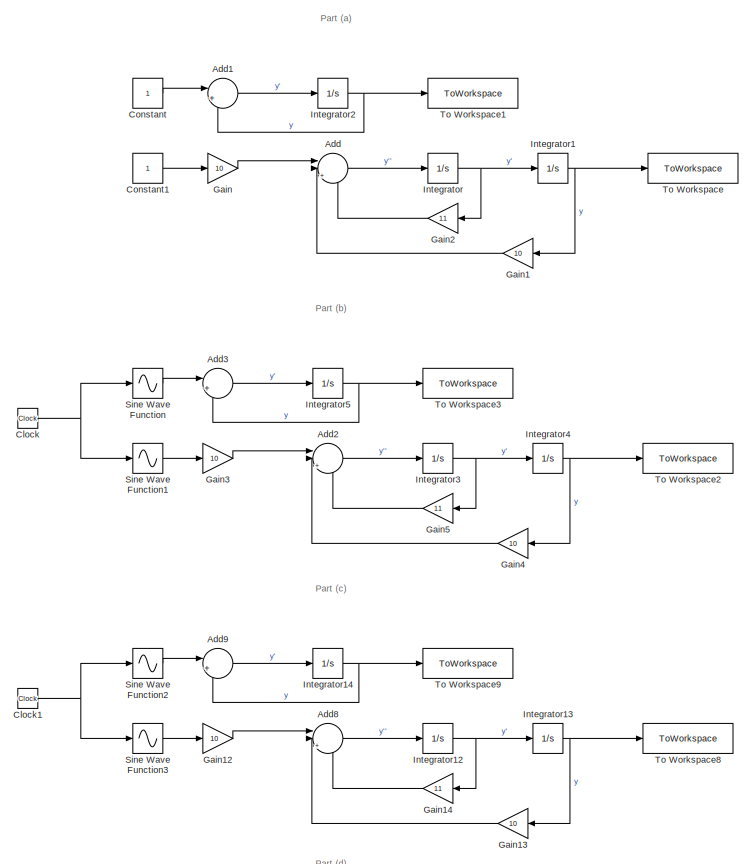
[diagram: root canvas - part 1/2, full width, top band]
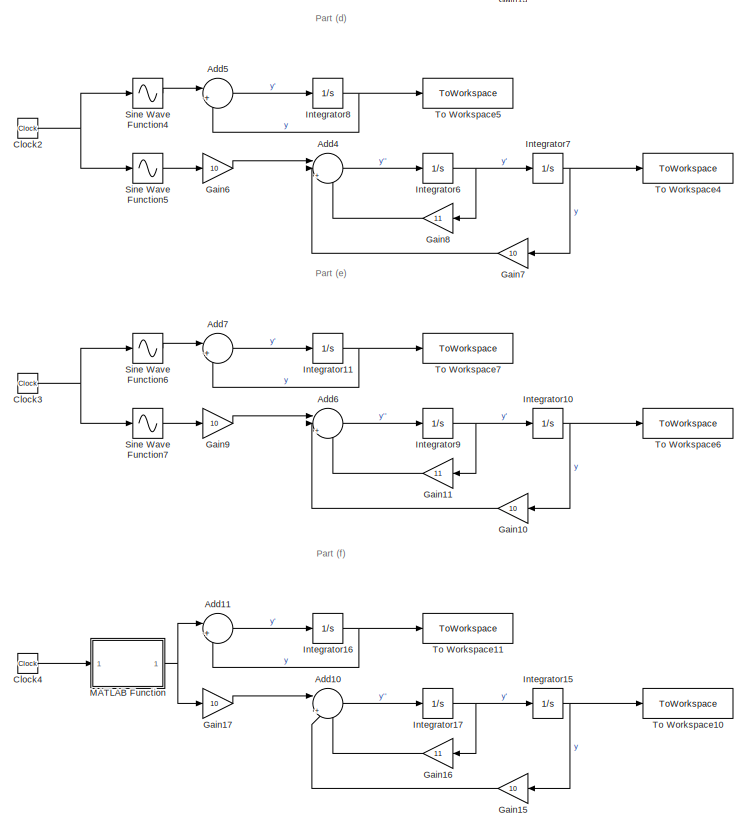
[diagram: root canvas - part 2/2, full width, bottom band]
MODEL slx_d54242b74423
KIND model
CONFIG AbsTol = auto
CONFIG EnableMultiTasking = off
CONFIG FixedStep = auto
CONFIG MaxStep = auto
CONFIG MinStep = auto
CONFIG RelTol = 1e-3
CONFIG SampleTimeConstraint = Unconstrained
CONFIG SolverName = VariableStepAuto
CONFIG StartTime = 0.0
CONFIG StopTime = time_end
BLOCK [Sum] Add
  Inputs = ||+--
  Ports = [3, 1]
BLOCK [Sum] Add1
  Inputs = |+-
  Ports = [2, 1]
BLOCK [Sum] Add10
  Inputs = ||+--
  Ports = [3, 1]
BLOCK [Sum] Add11
  Inputs = |+-
  Ports = [2, 1]
BLOCK [Sum] Add2
  Inputs = ||+--
  Ports = [3, 1]
BLOCK [Sum] Add3
  Inputs = |+-
  Ports = [2, 1]
BLOCK [Sum] Add4
  Inputs = ||+--
  Ports = [3, 1]
BLOCK [Sum] Add5
  Inputs = |+-
  Ports = [2, 1]
BLOCK [Sum] Add6
  Inputs = ||+--
  Ports = [3, 1]
BLOCK [Sum] Add7
  Inputs = |+-
  Ports = [2, 1]
BLOCK [Sum] Add8
  Inputs = ||+--
  Ports = [3, 1]
BLOCK [Sum] Add9
  Inputs = |+-
  Ports = [2, 1]
BLOCK [Clock] Clock
BLOCK [Clock] Clock1
BLOCK [Clock] Clock2
BLOCK [Clock] Clock3
BLOCK [Clock] Clock4
BLOCK [Constant] Constant
BLOCK [Constant] Constant1
BLOCK [Gain] Gain
  Gain = 10
BLOCK [Gain] Gain1
  Gain = 10
  NameLocation = top
BLOCK [Gain] Gain10
  Gain = 10
  NameLocation = top
BLOCK [Gain] Gain11
  Gain = 11
  NameLocation = top
BLOCK [Gain] Gain12
  Gain = 10
BLOCK [Gain] Gain13
  Gain = 10
  NameLocation = top
BLOCK [Gain] Gain14
  Gain = 11
  NameLocation = top
BLOCK [Gain] Gain15
  Gain = 10
  NameLocation = top
BLOCK [Gain] Gain16
  Gain = 11
  NameLocation = top
BLOCK [Gain] Gain17
  Gain = 10
BLOCK [Gain] Gain2
  Gain = 11
  NameLocation = top
BLOCK [Gain] Gain3
  Gain = 10
BLOCK [Gain] Gain4
  Gain = 10
  NameLocation = top
BLOCK [Gain] Gain5
  Gain = 11
  NameLocation = top
BLOCK [Gain] Gain6
  Gain = 10
BLOCK [Gain] Gain7
  Gain = 10
  NameLocation = top
BLOCK [Gain] Gain8
  Gain = 11
  NameLocation = top
BLOCK [Gain] Gain9
  Gain = 10
BLOCK [Integrator] Integrator
  Ports = [1, 1]
BLOCK [Integrator] Integrator1
  Ports = [1, 1]
BLOCK [Integrator] Integrator10
  Ports = [1, 1]
BLOCK [Integrator] Integrator11
  Ports = [1, 1]
BLOCK [Integrator] Integrator12
  Ports = [1, 1]
BLOCK [Integrator] Integrator13
  Ports = [1, 1]
BLOCK [Integrator] Integrator14
  Ports = [1, 1]
BLOCK [Integrator] Integrator15
  Ports = [1, 1]
BLOCK [Integrator] Integrator16
  Ports = [1, 1]
BLOCK [Integrator] Integrator17
  Ports = [1, 1]
BLOCK [Integrator] Integrator2
  Ports = [1, 1]
BLOCK [Integrator] Integrator3
  Ports = [1, 1]
BLOCK [Integrator] Integrator4
  Ports = [1, 1]
BLOCK [Integrator] Integrator5
  Ports = [1, 1]
BLOCK [Integrator] Integrator6
  Ports = [1, 1]
BLOCK [Integrator] Integrator7
  Ports = [1, 1]
BLOCK [Integrator] Integrator8
  Ports = [1, 1]
BLOCK [Integrator] Integrator9
  Ports = [1, 1]
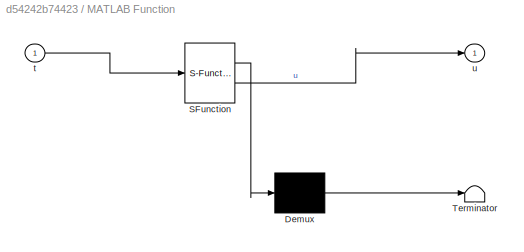
BLOCK [SubSystem] MATLAB Function
  ErrorFcn = Stateflow.Translate.translate
  PermitHierarchicalResolution = ExplicitOnly
  Ports = [1, 1]
  RequestExecContextInheritance = off
  SFBlockType = MATLAB Function
  TreatAsAtomicUnit = on
BLOCK [Demux] MATLAB Function/ Demux 
  Outputs = 1
  Ports = [1, 1]
BLOCK [S-Function] MATLAB Function/ SFunction 
  EnableBusSupport = off
  FunctionName = sf_sfun
  PortCounts = [1 2]
  Ports = [1, 2]
  SFcnIsStateOwnerBlock = off
  SFunctionDeploymentMode = off
  Tag = Stateflow S-Function 2
BLOCK [Terminator] MATLAB Function/ Terminator 
BLOCK [Inport] MATLAB Function/t
BLOCK [Outport] MATLAB Function/u
BLOCK [Sin] Sine Wave Function
  Ports = [1, 1]
  SampleTime = 0
  TimeSource = Use external signal
BLOCK [Sin] Sine Wave Function1
  Ports = [1, 1]
  SampleTime = 0
  TimeSource = Use external signal
BLOCK [Sin] Sine Wave Function2
  Frequency = 5
  Phase = pi / 2
  Ports = [1, 1]
  SampleTime = 0
  TimeSource = Use external signal
BLOCK [Sin] Sine Wave Function3
  Frequency = 5
  Phase = pi / 2
  Ports = [1, 1]
  SampleTime = 0
  TimeSource = Use external signal
BLOCK [Sin] Sine Wave Function4
  Amplitude = 25
  Frequency = 10
  Phase = pi / 2
  Ports = [1, 1]
  SampleTime = 0
  TimeSource = Use external signal
BLOCK [Sin] Sine Wave Function5
  Amplitude = 25
  Frequency = 10
  Phase = pi / 2
  Ports = [1, 1]
  SampleTime = 0
  TimeSource = Use external signal
BLOCK [Sin] Sine Wave Function6
  Amplitude = 25
  Frequency = 20
  Phase = pi / 2
  Ports = [1, 1]
  SampleTime = 0
  TimeSource = Use external signal
BLOCK [Sin] Sine Wave Function7
  Amplitude = 25
  Frequency = 20
  Phase = pi / 2
  Ports = [1, 1]
  SampleTime = 0
  TimeSource = Use external signal
BLOCK [ToWorkspace] To Workspace
  FixptAsFi = on
  MaxDataPoints = inf
  Ports = [1]
  SampleTime = -1
  SaveFormat = Timeseries
  VariableName = yOut_a2
BLOCK [ToWorkspace] To Workspace1
  FixptAsFi = on
  MaxDataPoints = inf
  Ports = [1]
  SampleTime = -1
  SaveFormat = Timeseries
  VariableName = yOut_a1
BLOCK [ToWorkspace] To Workspace10
  FixptAsFi = on
  MaxDataPoints = inf
  Ports = [1]
  SampleTime = -1
  SaveFormat = Timeseries
  VariableName = yOut_f2
BLOCK [ToWorkspace] To Workspace11
  FixptAsFi = on
  MaxDataPoints = inf
  Ports = [1]
  SampleTime = -1
  SaveFormat = Timeseries
  VariableName = yOut_f1
BLOCK [ToWorkspace] To Workspace2
  FixptAsFi = on
  MaxDataPoints = inf
  Ports = [1]
  SampleTime = -1
  SaveFormat = Timeseries
  VariableName = yOut_b2
BLOCK [ToWorkspace] To Workspace3
  FixptAsFi = on
  MaxDataPoints = inf
  Ports = [1]
  SampleTime = -1
  SaveFormat = Timeseries
  VariableName = yOut_b1
BLOCK [ToWorkspace] To Workspace4
  FixptAsFi = on
  MaxDataPoints = inf
  Ports = [1]
  SampleTime = -1
  SaveFormat = Timeseries
  VariableName = yOut_d2
BLOCK [ToWorkspace] To Workspace5
  FixptAsFi = on
  MaxDataPoints = inf
  Ports = [1]
  SampleTime = -1
  SaveFormat = Timeseries
  VariableName = yOut_d1
BLOCK [ToWorkspace] To Workspace6
  FixptAsFi = on
  MaxDataPoints = inf
  Ports = [1]
  SampleTime = -1
  SaveFormat = Timeseries
  VariableName = yOut_e2
BLOCK [ToWorkspace] To Workspace7
  FixptAsFi = on
  MaxDataPoints = inf
  Ports = [1]
  SampleTime = -1
  SaveFormat = Timeseries
  VariableName = yOut_e1
BLOCK [ToWorkspace] To Workspace8
  FixptAsFi = on
  MaxDataPoints = inf
  Ports = [1]
  SampleTime = -1
  SaveFormat = Timeseries
  VariableName = yOut_c2
BLOCK [ToWorkspace] To Workspace9
  FixptAsFi = on
  MaxDataPoints = inf
  Ports = [1]
  SampleTime = -1
  SaveFormat = Timeseries
  VariableName = yOut_c1
ANNOTATION (root): Part (a)
ANNOTATION (root): Part (b)
ANNOTATION (root): Part (c)
ANNOTATION (root): Part (d)
ANNOTATION (root): Part (e)
ANNOTATION (root): Part (f)
LINE Add10:1 -> Integrator17:1
LINE Add11:1 -> Integrator16:1
LINE Add1:1 -> Integrator2:1
LINE Add2:1 -> Integrator3:1
LINE Add3:1 -> Integrator5:1
LINE Add4:1 -> Integrator6:1
LINE Add5:1 -> Integrator8:1
LINE Add6:1 -> Integrator9:1
LINE Add7:1 -> Integrator11:1
LINE Add8:1 -> Integrator12:1
LINE Add9:1 -> Integrator14:1
LINE Add:1 -> Integrator:1
NET Clock1:1 -> Sine Wave Function2:1, Sine Wave Function3:1
NET Clock2:1 -> Sine Wave Function4:1, Sine Wave Function5:1
NET Clock3:1 -> Sine Wave Function6:1, Sine Wave Function7:1
LINE Clock4:1 -> MATLAB Function:1
NET Clock:1 -> Sine Wave Function1:1, Sine Wave Function:1
LINE Constant1:1 -> Gain:1
LINE Constant:1 -> Add1:1
LINE Gain10:1 -> Add6:2
LINE Gain11:1 -> Add6:3
LINE Gain12:1 -> Add8:1
LINE Gain13:1 -> Add8:2
LINE Gain14:1 -> Add8:3
LINE Gain15:1 -> Add10:2
LINE Gain16:1 -> Add10:3
LINE Gain17:1 -> Add10:1
LINE Gain1:1 -> Add:2
LINE Gain2:1 -> Add:3
LINE Gain3:1 -> Add2:1
LINE Gain4:1 -> Add2:2
LINE Gain5:1 -> Add2:3
LINE Gain6:1 -> Add4:1
LINE Gain7:1 -> Add4:2
LINE Gain8:1 -> Add4:3
LINE Gain9:1 -> Add6:1
LINE Gain:1 -> Add:1
NET Integrator10:1 -> Gain10:1, To Workspace6:1
NET Integrator11:1 -> Add7:2, To Workspace7:1
NET Integrator12:1 -> Gain14:1, Integrator13:1
NET Integrator13:1 -> Gain13:1, To Workspace8:1
NET Integrator14:1 -> Add9:2, To Workspace9:1
NET Integrator15:1 -> Gain15:1, To Workspace10:1
NET Integrator16:1 -> Add11:2, To Workspace11:1
NET Integrator17:1 -> Gain16:1, Integrator15:1
NET Integrator1:1 -> Gain1:1, To Workspace:1
NET Integrator2:1 -> Add1:2, To Workspace1:1
NET Integrator3:1 -> Gain5:1, Integrator4:1
NET Integrator4:1 -> Gain4:1, To Workspace2:1
NET Integrator5:1 -> Add3:2, To Workspace3:1
NET Integrator6:1 -> Gain8:1, Integrator7:1
NET Integrator7:1 -> Gain7:1, To Workspace4:1
NET Integrator8:1 -> Add5:2, To Workspace5:1
NET Integrator9:1 -> Gain11:1, Integrator10:1
NET Integrator:1 -> Gain2:1, Integrator1:1
NET MATLAB Function:1 -> Add11:1, Gain17:1
LINE Sine Wave Function1:1 -> Gain3:1
LINE Sine Wave Function2:1 -> Add9:1
LINE Sine Wave Function3:1 -> Gain12:1
LINE Sine Wave Function4:1 -> Add5:1
LINE Sine Wave Function5:1 -> Gain6:1
LINE Sine Wave Function6:1 -> Add7:1
LINE Sine Wave Function7:1 -> Gain9:1
LINE Sine Wave Function:1 -> Add3:1
note: NET lines group one-source signal fan-out (src -> all destinations, sorted); 1:1 wires keep LINE
CHART MATLAB Function states=1 transitions=1
  STATE_LABEL 'eML_blk_kernel()'
  STATE_LABEL 'SCRIPT:\nfunction u = hw2Q6_f_func(t)\nif (0 <= t) && (t < 3)\n    input = t;\n\nelseif (3 <= t) && (t < 5)\n    input = 3;\n\nelseif (5 <= t) && (t < 7)\n    input = -3;\n    \nelse\n    input = 2 * t - 17;\nend\n\nu = input;\n'
CHART  states=0 transitions=0
